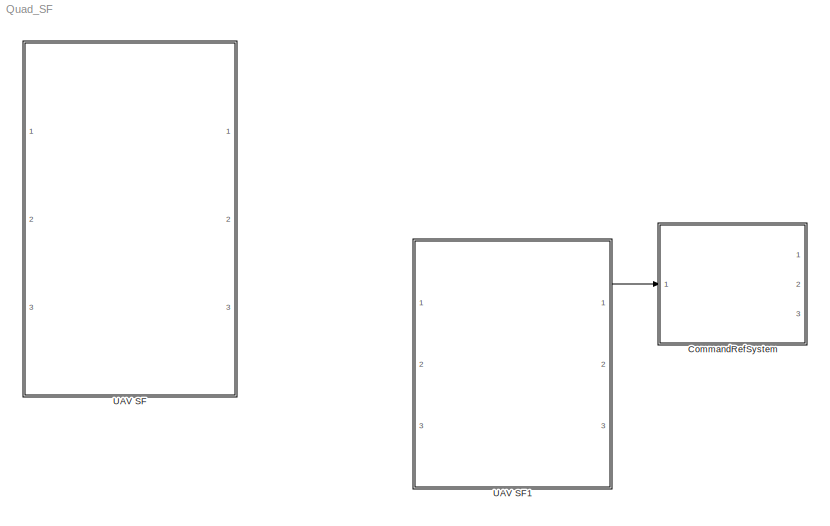
MODEL Quad_SF
KIND model
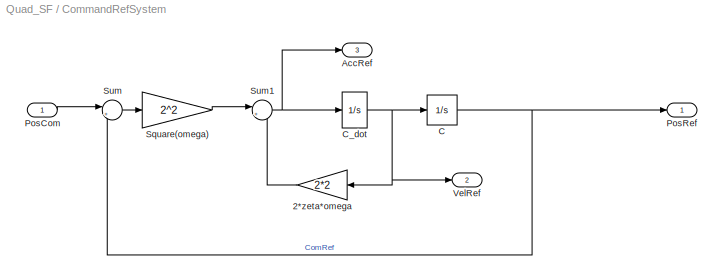
BLOCK [SubSystem] CommandRefSystem
  FunctionWithSeparateData = off
  MaskHideContents = off
  MinAlgLoopOccurrences = off
  Opaque = off
  Ports = [1, 3]
  PropExecContextOutsideSubsystem = off
  RTWSystemCode = Auto
  RequestExecContextInheritance = off
  SID = 14
BLOCK [Gain] CommandRefSystem/2*zeta*omega
  Gain = 2*2
  OutDataTypeStr = Inherit: Inherit via internal rule
  ParamDataTypeStr = Inherit: Inherit via internal rule
  SID = 16
  SaturateOnIntegerOverflow = off
BLOCK [Outport] CommandRefSystem/AccRef
  IconDisplay = Port number
  Port = 3
  SID = 24
BLOCK [Integrator] CommandRefSystem/C
  Ports = [1, 1]
  SID = 17
BLOCK [Integrator] CommandRefSystem/C_dot
  Ports = [1, 1]
  SID = 18
BLOCK [Inport] CommandRefSystem/PosCom
  IconDisplay = Port number
  SID = 15
BLOCK [Outport] CommandRefSystem/PosRef
  IconDisplay = Port number
  SID = 22
BLOCK [Gain] CommandRefSystem/Square(omega)
  Gain = 2^2
  OutDataTypeStr = Inherit: Inherit via internal rule
  ParamDataTypeStr = Inherit: Inherit via internal rule
  SID = 19
  SaturateOnIntegerOverflow = off
BLOCK [Sum] CommandRefSystem/Sum
  IconShape = round
  InputSameDT = off
  Inputs = |+-
  OutDataTypeStr = Inherit: Inherit via internal rule
  Ports = [2, 1]
  SID = 20
  SaturateOnIntegerOverflow = off
BLOCK [Sum] CommandRefSystem/Sum1
  IconShape = round
  InputSameDT = off
  Inputs = |+-
  OutDataTypeStr = Inherit: Inherit via internal rule
  Ports = [2, 1]
  SID = 21
  SaturateOnIntegerOverflow = off
BLOCK [Outport] CommandRefSystem/VelRef
  IconDisplay = Port number
  Port = 2
  SID = 23
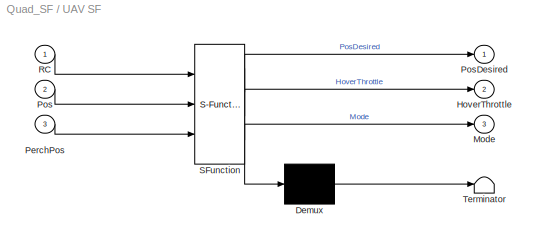
BLOCK [SubSystem] UAV SF
  ErrorFcn = Stateflow.Translate.translate
  FunctionWithSeparateData = off
  MaskDescription = Stateflow diagram
  MaskDisplay = plot(sf('Private','sfblk','xIcon'),sf('Private','sfblk','yIcon'));text(0.5,0,sf('Private', 'sfblk', 'tIcon'),'HorizontalAl','Center','VerticalAl','Bottom');
  MaskHideContents = off
  MaskIconFrame = off
  MaskIconOpaque = off
  MaskIconRotate = none
  MaskIconUnits = autoscale
  MaskPortRotate = default
  MaskSelfModifiable = on
  MaskType = Stateflow
  MinAlgLoopOccurrences = off
  Opaque = off
  PermitHierarchicalResolution = ExplicitOnly
  Ports = [3, 3]
  PropExecContextOutsideSubsystem = off
  RTWSystemCode = Auto
  RequestExecContextInheritance = off
  SID = 1
  TreatAsAtomicUnit = on
BLOCK [Demux] UAV SF/ Demux 
  Outputs = 1
  Ports = [1, 1]
  SID = 1::8
BLOCK [S-Function] UAV SF/ SFunction 
  EnableBusSupport = off
  FunctionName = sf_sfun
  Parameters = DeltaT,H0,Kl
  PortCounts = [3 4]
  Ports = [3, 4]
  SID = 1::7
  Tag = Stateflow S-Function Quad_SF 1
BLOCK [Terminator] UAV SF/ Terminator 
  SID = 1::10
BLOCK [Outport] UAV SF/HoverThrottle
  IconDisplay = Port number
  Port = 2
  SID = 1::17
BLOCK [Outport] UAV SF/Mode
  IconDisplay = Port number
  Port = 3
  SID = 1::18
BLOCK [Inport] UAV SF/PerchPos
  IconDisplay = Port number
  Port = 3
  SID = 1::23
BLOCK [Inport] UAV SF/Pos
  IconDisplay = Port number
  Port = 2
  SID = 1::20
BLOCK [Outport] UAV SF/PosDesired
  IconDisplay = Port number
  SID = 1::16
BLOCK [Inport] UAV SF/RC
  IconDisplay = Port number
  SID = 1::19
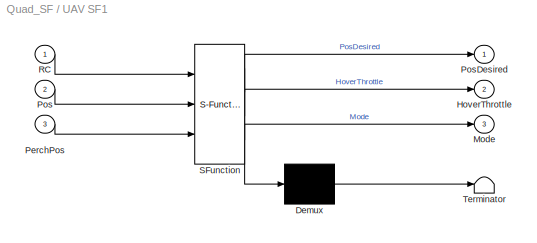
BLOCK [SubSystem] UAV SF1
  ErrorFcn = Stateflow.Translate.translate
  FunctionWithSeparateData = off
  MaskDescription = Stateflow diagram
  MaskDisplay = plot(sf('Private','sfblk','xIcon'),sf('Private','sfblk','yIcon'));text(0.5,0,sf('Private', 'sfblk', 'tIcon'),'HorizontalAl','Center','VerticalAl','Bottom');
  MaskHideContents = off
  MaskIconFrame = off
  MaskIconOpaque = off
  MaskIconRotate = none
  MaskIconUnits = autoscale
  MaskPortRotate = default
  MaskSelfModifiable = on
  MaskType = Stateflow
  MinAlgLoopOccurrences = off
  Opaque = off
  PermitHierarchicalResolution = ExplicitOnly
  Ports = [3, 3]
  PropExecContextOutsideSubsystem = off
  RTWSystemCode = Auto
  RequestExecContextInheritance = off
  SID = 25
  TreatAsAtomicUnit = on
BLOCK [Demux] UAV SF1/ Demux 
  Outputs = 1
  Ports = [1, 1]
  SID = 25::8
BLOCK [S-Function] UAV SF1/ SFunction 
  EnableBusSupport = on
  FunctionName = sf_sfun
  Parameters = DeltaT,H0,Kl
  PortCounts = [3 4]
  Ports = [3, 4]
  SID = 25::7
  Tag = Stateflow S-Function Quad_SF 3
BLOCK [Terminator] UAV SF1/ Terminator 
  SID = 25::10
BLOCK [Outport] UAV SF1/HoverThrottle
  IconDisplay = Port number
  Port = 2
  SID = 25::17
BLOCK [Outport] UAV SF1/Mode
  IconDisplay = Port number
  Port = 3
  SID = 25::18
BLOCK [Inport] UAV SF1/PerchPos
  IconDisplay = Port number
  Port = 3
  SID = 25::23
BLOCK [Inport] UAV SF1/Pos
  IconDisplay = Port number
  Port = 2
  SID = 25::20
BLOCK [Outport] UAV SF1/PosDesired
  IconDisplay = Port number
  SID = 25::16
BLOCK [Inport] UAV SF1/RC
  IconDisplay = Port number
  SID = 25::19
LINE CommandRefSystem/2*zeta*omega:1 -> CommandRefSystem/Sum1:2
NET CommandRefSystem/C:1 -> CommandRefSystem/PosRef:1, CommandRefSystem/Sum:2
NET CommandRefSystem/C_dot:1 -> CommandRefSystem/2*zeta*omega:1, CommandRefSystem/C:1, CommandRefSystem/VelRef:1
LINE CommandRefSystem/PosCom:1 -> CommandRefSystem/Sum:1
LINE CommandRefSystem/Square(omega):1 -> CommandRefSystem/Sum1:1
NET CommandRefSystem/Sum1:1 -> CommandRefSystem/AccRef:1, CommandRefSystem/C_dot:1
LINE CommandRefSystem/Sum:1 -> CommandRefSystem/Square(omega):1
LINE UAV SF/ Demux :1 -> UAV SF/ Terminator :1
LINE UAV SF/ SFunction :1 -> UAV SF/ Demux :1
LINE UAV SF/ SFunction :2 -> UAV SF/PosDesired:1
LINE UAV SF/ SFunction :3 -> UAV SF/HoverThrottle:1
LINE UAV SF/ SFunction :4 -> UAV SF/Mode:1
LINE UAV SF/PerchPos:1 -> UAV SF/ SFunction :3
LINE UAV SF/Pos:1 -> UAV SF/ SFunction :2
LINE UAV SF/RC:1 -> UAV SF/ SFunction :1
LINE UAV SF1/ Demux :1 -> UAV SF1/ Terminator :1
LINE UAV SF1/ SFunction :1 -> UAV SF1/ Demux :1
LINE UAV SF1/ SFunction :2 -> UAV SF1/PosDesired:1
LINE UAV SF1/ SFunction :3 -> UAV SF1/HoverThrottle:1
LINE UAV SF1/ SFunction :4 -> UAV SF1/Mode:1
LINE UAV SF1/PerchPos:1 -> UAV SF1/ SFunction :3
LINE UAV SF1/Pos:1 -> UAV SF1/ SFunction :2
LINE UAV SF1/RC:1 -> UAV SF1/ SFunction :1
LINE UAV SF1:1 -> CommandRefSystem:1
note: NET lines group one-source signal fan-out (src -> all destinations, sorted); 1:1 wires keep LINE
CHART UAV SF states=7 transitions=7
  STATE_LABEL 'Off'
  STATE_LABEL 'On'
  STATE_LABEL 'Perching'
  STATE_LABEL 'Trajectory\\n\\ndu:'
  STATE_LABEL 'Takeoff'
  STATE_LABEL 'Landing\\ndu:{HoverThrottle = (-0.8 - HoverThrottle)*Kl*DeltaT + HoverThrottle ;}'
  STATE_LABEL 'Hover\\ndu:{HoverThrottle = (H0 - HoverThrottle)*Kl*DeltaT\\n+ HoverThrottle ;}'
CHART UAV SF1 states=7 transitions=7
  STATE_LABEL 'Off'
  STATE_LABEL 'On'
  STATE_LABEL 'Perching'
  STATE_LABEL 'Trajectory\\n\\ndu:'
  STATE_LABEL 'In Air'
  STATE_LABEL 'Landing\\ndu:{HoverThrottle = (-0.8 - HoverThrottle)*Kl*DeltaT + HoverThrottle ;}'
  STATE_LABEL 'Take Off\\ndu:{HoverThrottle = (H0 - HoverThrottle)*Kl*DeltaT\\n+ HoverThrottle ;}'
